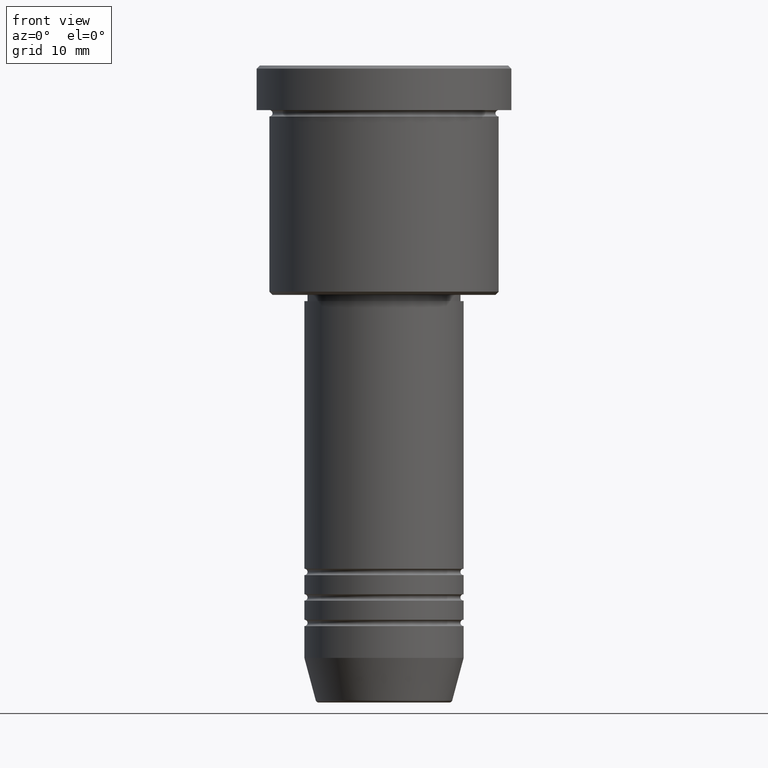
[diagram: clean part render]
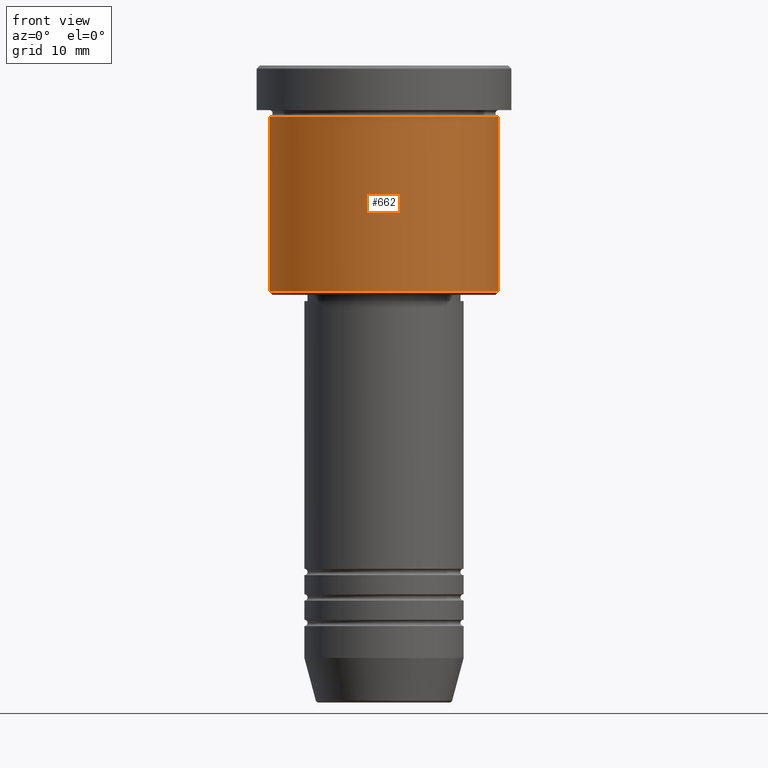
[diagram: same view with one face highlighted and labeled with its STEP entity id]
A machine part, front view. The second image highlights one B-rep face of the part: STEP entity #662.
In plain terms, the highlighted cylindrical surface (partial cylindrical patch) has radius 18 mm, axis along (-0, -0, 1).
Its self-contained STEP definition (entity closure, byte-faithful):
#41 = VECTOR ( 'NONE', #88, 1000.000000000000000 ) ;
#44 = CARTESIAN_POINT ( 'NONE',  ( 0.000000000000000000, 0.000000000000000000, 0.000000000000000000 ) ) ;
#87 = ORIENTED_EDGE ( 'NONE', *, *, #366, .F. ) ;
#88 = DIRECTION ( 'NONE',  ( -0.000000000000000000, -0.000000000000000000, 1.000000000000000000 ) ) ;
#99 = EDGE_CURVE ( 'NONE', #1169, #1178, #135, .T. ) ;
#135 = CIRCLE ( 'NONE', #611, 18.00000000000000000 ) ;
#228 = DIRECTION ( 'NONE',  ( 1.000000000000000000, 0.000000000000000000, 0.000000000000000000 ) ) ;
#260 = LINE ( 'NONE', #892, #41 ) ;
#315 = LINE ( 'NONE', #645, #1162 ) ;
#322 = VERTEX_POINT ( 'NONE', #1015 ) ;
#335 = ORIENTED_EDGE ( 'NONE', *, *, #353, .F. ) ;
#353 = EDGE_CURVE ( 'NONE', #1169, #522, #315, .T. ) ;
#354 = ORIENTED_EDGE ( 'NONE', *, *, #99, .T. ) ;
#366 = EDGE_CURVE ( 'NONE', #522, #322, #1037, .T. ) ;
#367 = EDGE_LOOP ( 'NONE', ( #335, #354, #813, #87 ) ) ;
#425 = AXIS2_PLACEMENT_3D ( 'NONE', #1120, #728, #228 ) ;
#473 = CYLINDRICAL_SURFACE ( 'NONE', #1080, 18.00000000000000000 ) ;
#518 = DIRECTION ( 'NONE',  ( -1.000000000000000000, 0.000000000000000000, 0.000000000000000000 ) ) ;
#522 = VERTEX_POINT ( 'NONE', #866 ) ;
#567 = FACE_OUTER_BOUND ( 'NONE', #367, .T. ) ;
#571 = DIRECTION ( 'NONE',  ( -0.000000000000000000, -0.000000000000000000, 1.000000000000000000 ) ) ;
#606 = CARTESIAN_POINT ( 'NONE',  ( 18.00000000000000000, 0.000000000000000000, -35.50000000000000000 ) ) ;
#611 = AXIS2_PLACEMENT_3D ( 'NONE', #1071, #1157, #518 ) ;
#641 = DIRECTION ( 'NONE',  ( -0.000000000000000000, -0.000000000000000000, 1.000000000000000000 ) ) ;
#645 = CARTESIAN_POINT ( 'NONE',  ( -18.00000000000000000, 2.204364238465235428E-15, 0.000000000000000000 ) ) ;
#662 = ADVANCED_FACE ( 'NONE', ( #567 ), #473, .T. ) ;
#679 = CARTESIAN_POINT ( 'NONE',  ( -18.00000000000000000, 2.204364238465235428E-15, -35.50000000000000000 ) ) ;
#728 = DIRECTION ( 'NONE',  ( -0.000000000000000000, -0.000000000000000000, 1.000000000000000000 ) ) ;
#813 = ORIENTED_EDGE ( 'NONE', *, *, #990, .T. ) ;
#866 = CARTESIAN_POINT ( 'NONE',  ( -18.00000000000000000, 2.204364238465235428E-15, -7.999999999999996447 ) ) ;
#892 = CARTESIAN_POINT ( 'NONE',  ( 18.00000000000000000, 0.000000000000000000, 0.000000000000000000 ) ) ;
#945 = DIRECTION ( 'NONE',  ( 1.000000000000000000, 0.000000000000000000, 0.000000000000000000 ) ) ;
#990 = EDGE_CURVE ( 'NONE', #1178, #322, #260, .T. ) ;
#1015 = CARTESIAN_POINT ( 'NONE',  ( 18.00000000000000000, 0.000000000000000000, -7.999999999999996447 ) ) ;
#1037 = CIRCLE ( 'NONE', #425, 18.00000000000000000 ) ;
#1071 = CARTESIAN_POINT ( 'NONE',  ( 0.000000000000000000, 0.000000000000000000, -35.50000000000000000 ) ) ;
#1080 = AXIS2_PLACEMENT_3D ( 'NONE', #44, #571, #945 ) ;
#1120 = CARTESIAN_POINT ( 'NONE',  ( 0.000000000000000000, 0.000000000000000000, -7.999999999999996447 ) ) ;
#1157 = DIRECTION ( 'NONE',  ( -0.000000000000000000, -0.000000000000000000, 1.000000000000000000 ) ) ;
#1162 = VECTOR ( 'NONE', #641, 1000.000000000000000 ) ;
#1169 = VERTEX_POINT ( 'NONE', #679 ) ;
#1178 = VERTEX_POINT ( 'NONE', #606 ) ;